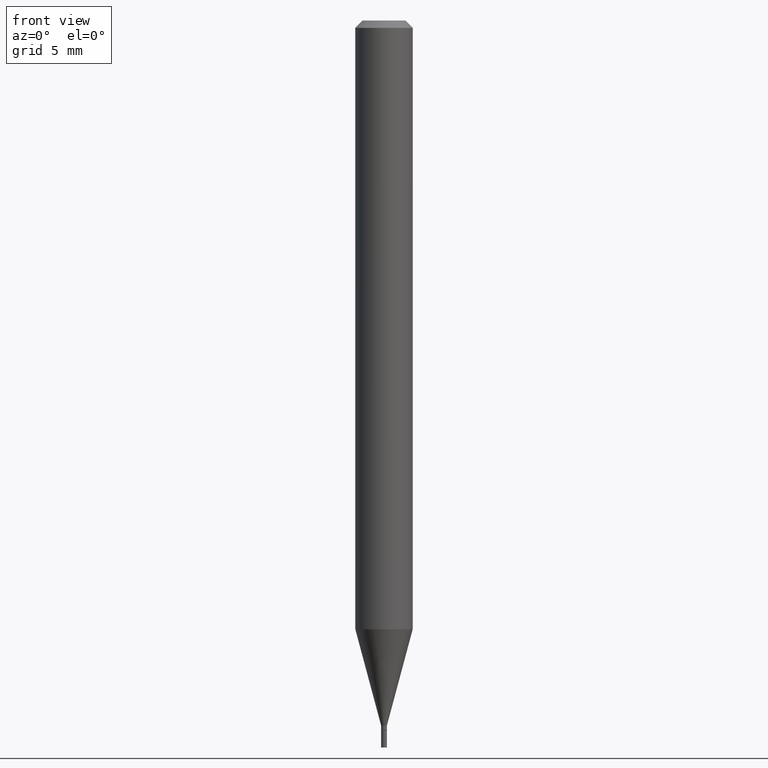
[diagram: clean part render]
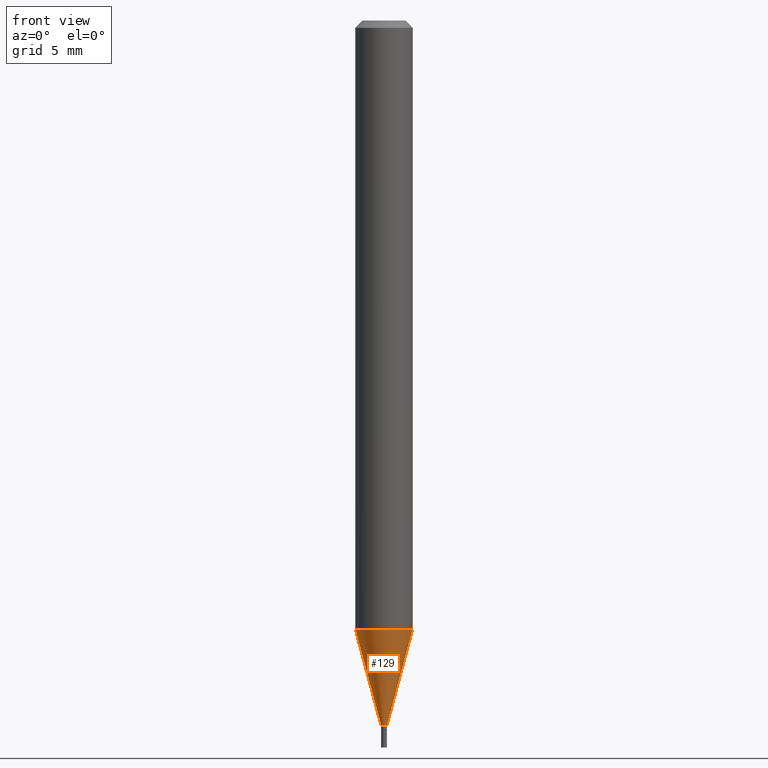
[diagram: same view with one face highlighted and labeled with its STEP entity id]
A machine part, front view. The second image highlights one B-rep face of the part: STEP entity #129.
In plain terms, the highlighted conical surface has half-angle 15 deg.
Its self-contained STEP definition (entity closure, byte-faithful):
#2 = FACE_OUTER_BOUND ( 'NONE', #51, .T. ) ;
#6 = AXIS2_PLACEMENT_3D ( 'NONE', #250, #375, #126 ) ;
#15 = EDGE_CURVE ( 'NONE', #84, #49, #425, .T. ) ;
#18 = LINE ( 'NONE', #259, #432 ) ;
#24 = AXIS2_PLACEMENT_3D ( 'NONE', #171, #133, #43 ) ;
#43 = DIRECTION ( 'NONE',  ( 1.000000000000000000, -6.982962677686309309E-15, 0.000000000000000000 ) ) ;
#49 = VERTEX_POINT ( 'NONE', #242 ) ;
#51 = EDGE_LOOP ( 'NONE', ( #179, #79, #448, #262 ) ) ;
#60 = EDGE_CURVE ( 'NONE', #84, #252, #18, .T. ) ;
#62 = CARTESIAN_POINT ( 'NONE',  ( -0.05905000000000000526, -3.954348082703628668E-15, -1.252741499577714190 ) ) ;
#71 = CIRCLE ( 'NONE', #125, 0.05904999999999999832 ) ;
#79 = ORIENTED_EDGE ( 'NONE', *, *, #15, .T. ) ;
#84 = VERTEX_POINT ( 'NONE', #187 ) ;
#95 = DIRECTION ( 'NONE',  ( 0.2588190451025212391, 1.565188264969622362E-15, 0.9659258262890679791 ) ) ;
#125 = AXIS2_PLACEMENT_3D ( 'NONE', #172, #247, #316 ) ;
#126 = DIRECTION ( 'NONE',  ( 1.000000000000000000, -6.982962677686309309E-15, 0.000000000000000000 ) ) ;
#129 = ADVANCED_FACE ( 'NONE', ( #2 ), #209, .T. ) ;
#133 = DIRECTION ( 'NONE',  ( -2.445468806185136597E-29, 3.491481338843145583E-15, 1.000000000000000000 ) ) ;
#171 = CARTESIAN_POINT ( 'NONE',  ( 3.548619784655251556E-29, -5.066488570795288817E-15, -1.451100000000000056 ) ) ;
#172 = CARTESIAN_POINT ( 'NONE',  ( 3.063540259430890909E-29, -4.373923568169968161E-15, -1.252741499577714190 ) ) ;
#179 = ORIENTED_EDGE ( 'NONE', *, *, #60, .F. ) ;
#187 = CARTESIAN_POINT ( 'NONE',  ( -0.005899999999999922667, -4.489457316044536124E-15, -1.451100000000000056 ) ) ;
#206 = CARTESIAN_POINT ( 'NONE',  ( 0.05905000000000000526, -4.786267514287342293E-15, -1.252741499577714190 ) ) ;
#209 = CONICAL_SURFACE ( 'NONE', #24, 0.005899999999999922667, 0.2617993877991499629 ) ;
#242 = CARTESIAN_POINT ( 'NONE',  ( 0.005899999999999922667, -5.107688050593637090E-15, -1.451100000000000056 ) ) ;
#247 = DIRECTION ( 'NONE',  ( -2.445468806185136597E-29, 3.491481338843145583E-15, 1.000000000000000000 ) ) ;
#250 = CARTESIAN_POINT ( 'NONE',  ( 3.548619784655251556E-29, -5.066488570795288817E-15, -1.451100000000000056 ) ) ;
#252 = VERTEX_POINT ( 'NONE', #62 ) ;
#259 = CARTESIAN_POINT ( 'NONE',  ( -0.005899999999999922667, -5.024566549385442790E-15, -1.451100000000000056 ) ) ;
#262 = ORIENTED_EDGE ( 'NONE', *, *, #388, .F. ) ;
#267 = EDGE_CURVE ( 'NONE', #49, #412, #303, .T. ) ;
#303 = LINE ( 'NONE', #460, #326 ) ;
#316 = DIRECTION ( 'NONE',  ( 1.000000000000000000, -6.982962677686273021E-15, 0.000000000000000000 ) ) ;
#326 = VECTOR ( 'NONE', #95, 39.37007874015748854 ) ;
#359 = DIRECTION ( 'NONE',  ( -0.2588190451025212391, 5.211531920934549464E-15, 0.9659258262890679791 ) ) ;
#375 = DIRECTION ( 'NONE',  ( -2.445468806185136597E-29, 3.491481338843145583E-15, 1.000000000000000000 ) ) ;
#388 = EDGE_CURVE ( 'NONE', #252, #412, #71, .T. ) ;
#412 = VERTEX_POINT ( 'NONE', #206 ) ;
#425 = CIRCLE ( 'NONE', #6, 0.005899999999999922667 ) ;
#432 = VECTOR ( 'NONE', #359, 39.37007874015748854 ) ;
#448 = ORIENTED_EDGE ( 'NONE', *, *, #267, .T. ) ;
#460 = CARTESIAN_POINT ( 'NONE',  ( 0.005899999999999922667, -5.107688050593637090E-15, -1.451100000000000056 ) ) ;